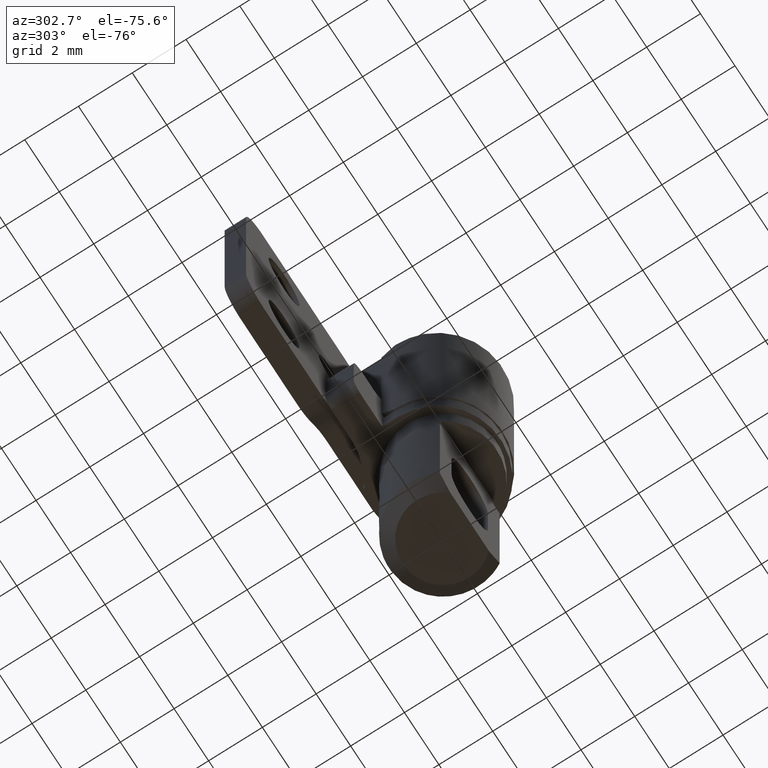
[diagram: clean part render]
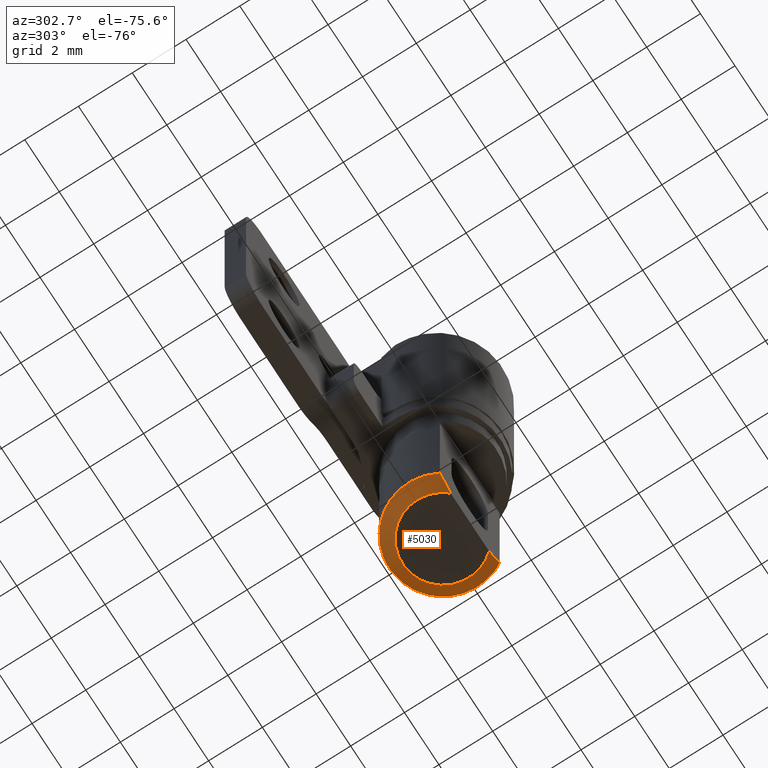
[diagram: same view with one face highlighted and labeled with its STEP entity id]
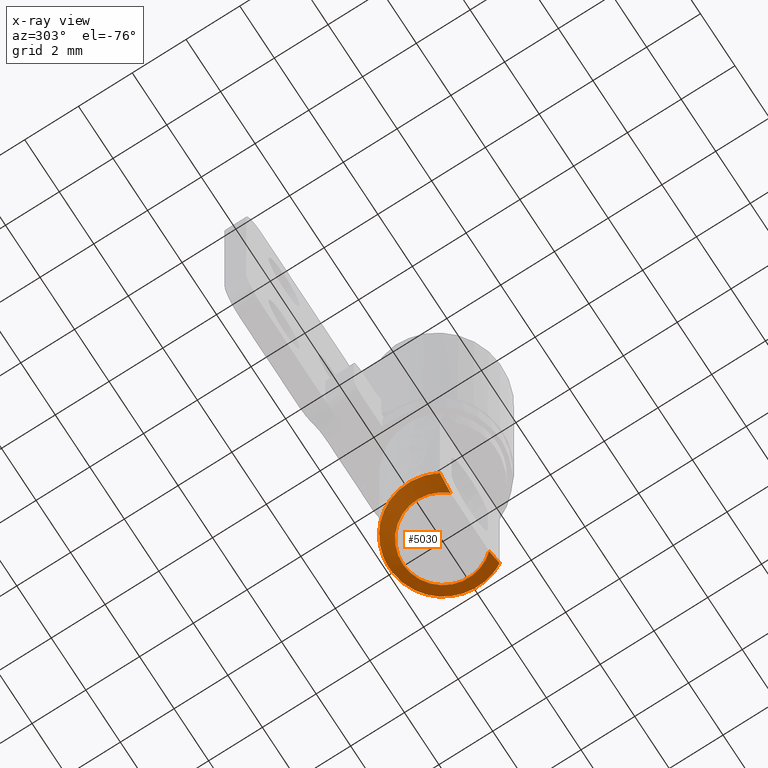
[diagram: x-ray of the same camera — body ghosted, the highlighted face saturated]
A machine part, auxiliary view. The second image highlights one B-rep face of the part: STEP entity #5030.
The next image is the same camera in x-ray: the body ghosted, the highlighted face saturated — about 0% of this face is hidden behind the body in this view.
In plain terms, the highlighted face is a freeform B-spline surface patch.
Its self-contained STEP definition (entity closure, byte-faithful):
#4548=CARTESIAN_POINT('',(1.732050807568850,-1.0,0.499999999999943));
#4549=VERTEX_POINT('',#4548);
#4555=CARTESIAN_POINT('',(0.122097689102757,1.996269559532312,0.499999999999943));
#4556=VERTEX_POINT('',#4555);
#4557=CARTESIAN_POINT('',(0.122097689102757,1.996269559532312,0.499999999999943));
#4558=CARTESIAN_POINT('',(0.780368330415523,1.956007800430424,0.499999999999943));
#4559=CARTESIAN_POINT('',(1.285575219373063,1.532088886237930,0.499999999999943));
#4560=CARTESIAN_POINT('',(2.571150438746126,0.453363193811338,0.499999999999943));
#4561=CARTESIAN_POINT('',(1.732050807568845,-0.999999999999996,0.499999999999943));
#4569=(BOUNDED_CURVE()B_SPLINE_CURVE(2,(#4557,#4558,#4559,#4560,#4561),.UNSPECIFIED.,.F.,.U.)B_SPLINE_CURVE_WITH_KNOTS((3,2,3),(0.513990574575450,0.666666666666667,1.0),.UNSPECIFIED.)CURVE()GEOMETRIC_REPRESENTATION_ITEM()RATIONAL_B_SPLINE_CURVE((0.883846505752535,0.892841739557143,1.0,0.766044443118977,1.0))REPRESENTATION_ITEM(''));
#4570=EDGE_CURVE('',#4556,#4549,#4569,.T.);
#4744=CARTESIAN_POINT('',(-1.732050807568860,-1.0,0.499999999999943));
#4745=VERTEX_POINT('',#4744);
#4746=CARTESIAN_POINT('',(-1.732050807568860,-1.0,0.499999999999943));
#4747=CARTESIAN_POINT('',(-2.571150438746125,0.453363193811341,0.499999999999943));
#4748=CARTESIAN_POINT('',(-1.285575219373061,1.532088886237932,0.499999999999943));
#4749=CARTESIAN_POINT('',(-0.674333461575072,2.044981619766377,0.499999999999943));
#4750=CARTESIAN_POINT('',(0.122097689102761,1.996269559532391,0.499999999999943));
#4758=(BOUNDED_CURVE()B_SPLINE_CURVE(2,(#4746,#4747,#4748,#4749,#4750),.UNSPECIFIED.,.F.,.U.)B_SPLINE_CURVE_WITH_KNOTS((3,2,3),(0.0,0.333333333333333,0.513990574575450),.UNSPECIFIED.)CURVE()GEOMETRIC_REPRESENTATION_ITEM()RATIONAL_B_SPLINE_CURVE((1.0,0.766044443118977,1.0,0.873202703561834,0.883846505752535))REPRESENTATION_ITEM(''));
#4759=EDGE_CURVE('',#4745,#4556,#4758,.T.);
#4950=CARTESIAN_POINT('',(-1.078994376879803,-1.023927431343520,-0.012500000001353));
#4951=CARTESIAN_POINT('',(-1.460042601153172,-1.385528694388567,0.512812499999975));
#4952=CARTESIAN_POINT('',(-2.091076650267742,0.042584753501878,-0.012500000001353));
#4953=CARTESIAN_POINT('',(-2.829543005123258,0.057623612879379,0.512812499999975));
#4954=CARTESIAN_POINT('',(-1.036412506024899,1.067007669771479,-0.012500000001353));
#4955=CARTESIAN_POINT('',(-1.402422888931179,1.443822773320234,0.512812499999975));
#4956=CARTESIAN_POINT('',(0.018251638217943,2.091430586041081,-0.012500000001353));
#4957=CARTESIAN_POINT('',(0.024697227260899,2.830021933761089,0.512812499999975));
#4958=CARTESIAN_POINT('',(1.054876506904819,1.048757267043361,-0.012500000001353));
#4959=CARTESIAN_POINT('',(1.427407474995817,1.419127217863949,0.512812499999975));
#4960=CARTESIAN_POINT('',(2.091501375591695,0.006083948045642,-0.012500000001353));
#4961=CARTESIAN_POINT('',(2.830117722730734,0.008232501966809,0.512812499999975));
#4962=CARTESIAN_POINT('',(1.060960043115872,-1.042602530645086,-0.012500000001353));
#4963=CARTESIAN_POINT('',(1.435639419688134,-1.410798928548545,0.512812499999975));
#4971=(BOUNDED_SURFACE()B_SPLINE_SURFACE(1,2,((#4950,#4952,#4954,#4956,#4958,#4960,#4962),(#4951,#4953,#4955,#4957,#4959,#4961,#4963)),.UNSPECIFIED.,.F.,.F.,.U.)B_SPLINE_SURFACE_WITH_KNOTS((2,2),(3,2,2,3),(0.0,1.0),(0.0,3.307531490418924,6.615062980837848,9.922594471256772),.UNSPECIFIED.)GEOMETRIC_REPRESENTATION_ITEM()RATIONAL_B_SPLINE_SURFACE(((1.0,0.711208572010137,1.0,0.711208572010137,1.0,0.711208572010137,1.0),(1.0,0.711208572010137,1.0,0.711208572010137,1.0,0.711208572010137,1.0)))REPRESENTATION_ITEM('')SURFACE());
#4972=ORIENTED_EDGE('',*,*,#4759,.T.);
#4973=ORIENTED_EDGE('',*,*,#4570,.T.);
#4974=CARTESIAN_POINT('',(1.118033988748140,-1.0,-1.321654E-012));
#4975=VERTEX_POINT('',#4974);
#4976=CARTESIAN_POINT('',(1.732050807568850,-1.0,0.499999999999943));
#4977=CARTESIAN_POINT('',(1.604751663946141,-1.0,0.389774959392769));
#4978=CARTESIAN_POINT('',(1.475789302395327,-1.0,0.280995943790604));
#4979=CARTESIAN_POINT('',(1.269822589812230,-1.0,0.115759817617941));
#4980=CARTESIAN_POINT('',(1.194501933527995,-1.0,0.056971366449148));
#4981=CARTESIAN_POINT('',(1.118033988748140,-1.0,-1.321654E-012));
#4982=B_SPLINE_CURVE_WITH_KNOTS('',3,(#4976,#4977,#4978,#4979,#4980,#4981),.UNSPECIFIED.,.F.,.U.,(4,2,4),(0.0,0.125000000000000,0.196035921622719),.UNSPECIFIED.);
#4983=EDGE_CURVE('',#4549,#4975,#4982,.T.);
#4984=ORIENTED_EDGE('',*,*,#4983,.T.);
#4985=CARTESIAN_POINT('',(-1.118033988748140,-1.0,-1.321654E-012));
#4986=VERTEX_POINT('',#4985);
#4987=CARTESIAN_POINT('',(-1.118033988748140,-1.0,-1.321654E-012));
#4988=CARTESIAN_POINT('',(-1.201934634716200,-0.906250698866948,-1.206608E-012));
#4989=CARTESIAN_POINT('',(-1.335616972222465,-0.712374557148795,-9.939780E-013));
#4990=CARTESIAN_POINT('',(-1.450102713119121,-0.417459382040627,-7.269577E-013));
#4991=CARTESIAN_POINT('',(-1.499741696277679,-0.146986686451223,-5.172161E-013));
#4992=CARTESIAN_POINT('',(-1.503191325293905,0.078467986035531,-3.664615E-013));
#4993=CARTESIAN_POINT('',(-1.472628871519460,0.315052644230192,-2.300071E-013));
#4994=CARTESIAN_POINT('',(-1.407493232972187,0.540519148709646,-1.228428E-013));
#4995=CARTESIAN_POINT('',(-1.274372292209914,0.811641407919096,-2.769077E-014));
#4996=CARTESIAN_POINT('',(-1.095947838051075,1.040048608975090,5.577303E-015));
#4997=CARTESIAN_POINT('',(-0.871991306018814,1.229004068541838,-1.722833E-015));
#4998=CARTESIAN_POINT('',(-0.646948083758493,1.362293204923337,7.477894E-016));
#4999=CARTESIAN_POINT('',(-0.405731503081728,1.451703031437100,-2.685945E-016));
#5000=CARTESIAN_POINT('',(-0.170932846966972,1.495445323593829,4.198788E-017));
#5001=CARTESIAN_POINT('',(0.076558053374911,1.505470875861512,-8.557887E-018));
#5002=CARTESIAN_POINT('',(0.300502368599469,1.476121764804862,2.392765E-018));
#5003=CARTESIAN_POINT('',(0.546461553709976,1.403375535285317,-3.808125E-019));
#5004=CARTESIAN_POINT('',(0.746597392051767,1.309070557128989,-3.107601E-024));
#5005=CARTESIAN_POINT('',(0.972298105683227,1.152469123246022,4.074997E-019));
#5006=CARTESIAN_POINT('',(1.180775574833566,0.945515715116167,-2.799171E-018));
#5007=CARTESIAN_POINT('',(1.352559403983860,0.674108677786835,9.665754E-018));
#5008=CARTESIAN_POINT('',(1.446195024055004,0.420015001659013,-4.335159E-017));
#5009=CARTESIAN_POINT('',(1.495466354702685,0.177414631502474,2.701360E-016));
#5010=CARTESIAN_POINT('',(1.506419973680052,-0.052498640642384,-1.016569E-015));
#5011=CARTESIAN_POINT('',(1.475418209166271,-0.302944238554787,3.402518E-015));
#5012=CARTESIAN_POINT('',(1.414284385902140,-0.515204074796461,8.962147E-014));
#5013=CARTESIAN_POINT('',(1.304965322645925,-0.757292619386294,-4.644035E-013));
#5014=CARTESIAN_POINT('',(1.198933510606202,-0.909592659954603,9.542719E-013));
#5015=CARTESIAN_POINT('',(1.118033988748140,-1.0,-1.321654E-012));
#5016=B_SPLINE_CURVE_WITH_KNOTS('',3,(#4987,#4988,#4989,#4990,#4991,#4992,#4993,#4994,#4995,#4996,#4997,#4998,#4999,#5000,#5001,#5002,#5003,#5004,#5005,#5006,#5007,#5008,#5009,#5010,#5011,#5012,#5013,#5014,#5015),.UNSPECIFIED.,.F.,.U.,(4,1,1,1,1,1,1,1,1,1,1,1,1,1,1,1,1,1,1,1,1,1,1,1,1,1,4),(0.000000073358580,0.377421274560114,0.700942605607051,0.943577590545502,1.199692620867337,1.374930893728534,1.658007757159766,1.900637196571982,2.278072908415931,2.520699344309375,2.776808204921878,3.059884734278611,3.289039453420003,3.491237501638166,3.801274457971751,3.963027937773382,4.259582320512734,4.461779183050897,4.785275505164468,5.135753268491584,5.418828776222226,5.594066131134531,5.877141433405999,6.106295981323381,6.348929523306581,6.537647297696325,6.901595170966834),.UNSPECIFIED.);
#5017=EDGE_CURVE('',#4986,#4975,#5016,.T.);
#5018=ORIENTED_EDGE('',*,*,#5017,.F.);
#5019=CARTESIAN_POINT('',(-1.118033988748140,-1.0,-1.321654E-012));
#5020=CARTESIAN_POINT('',(-1.193115203462462,-1.0,0.055943189319220));
#5021=CARTESIAN_POINT('',(-1.267019880585283,-1.0,0.113584608318073));
#5022=CARTESIAN_POINT('',(-1.473082388942670,-1.0,0.278699889178426));
#5023=CARTESIAN_POINT('',(-1.603312884334719,-1.0,0.388529542384382));
#5024=CARTESIAN_POINT('',(-1.732050807568860,-1.0,0.499999999999943));
#5025=B_SPLINE_CURVE_WITH_KNOTS('',3,(#5019,#5020,#5021,#5022,#5023,#5024),.UNSPECIFIED.,.F.,.U.,(4,2,4),(0.806495957066609,0.875000000000000,1.0),.UNSPECIFIED.);
#5026=EDGE_CURVE('',#4986,#4745,#5025,.T.);
#5027=ORIENTED_EDGE('',*,*,#5026,.T.);
#5028=EDGE_LOOP('',(#4972,#4973,#4984,#5018,#5027));
#5029=FACE_OUTER_BOUND('',#5028,.T.);
#5030=ADVANCED_FACE('',(#5029),#4971,.T.);